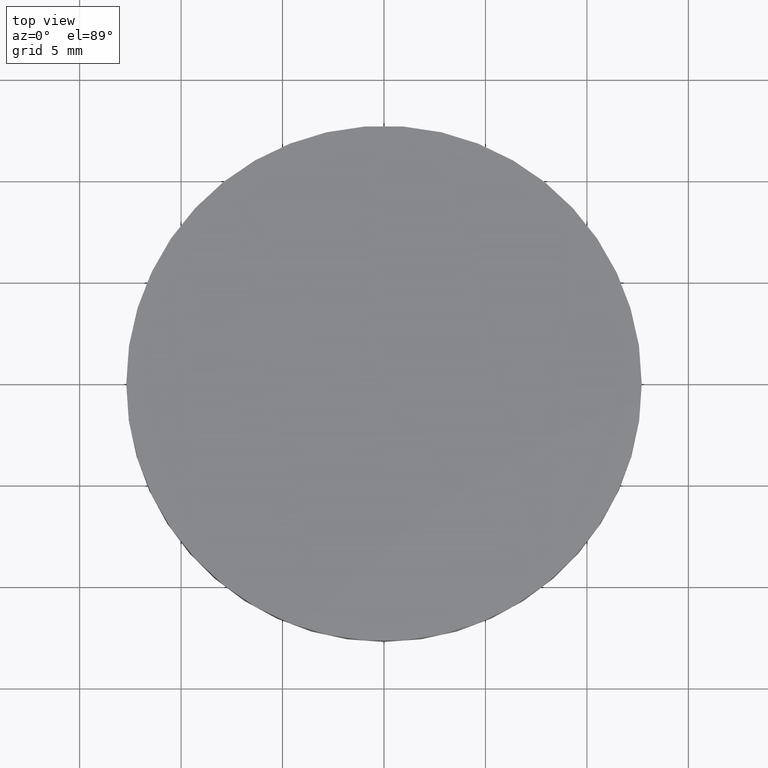
[diagram: clean part render]
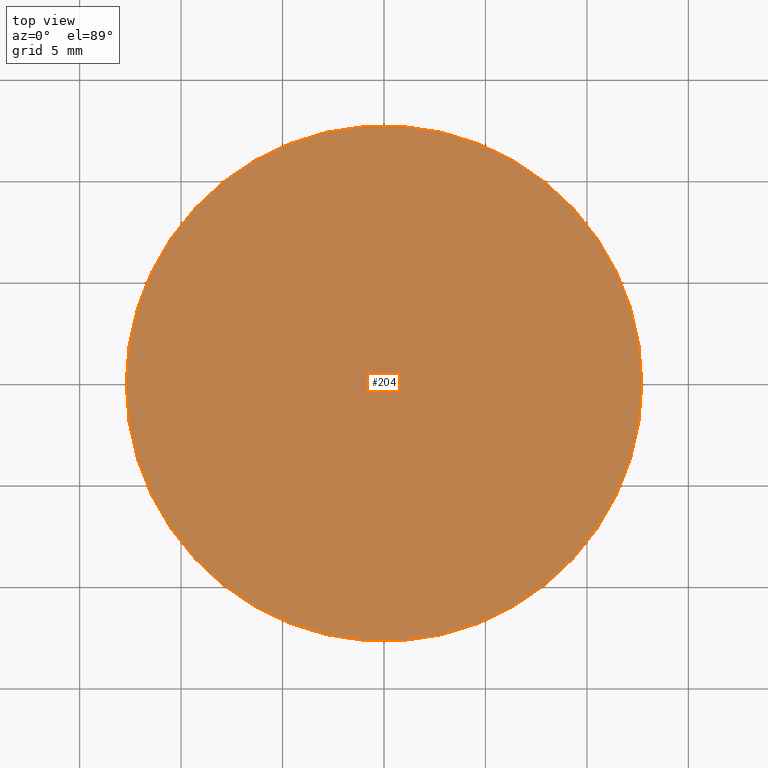
[diagram: same view with one face highlighted and labeled with its STEP entity id]
A machine part, top view. The second image highlights one B-rep face of the part: STEP entity #204.
In plain terms, the highlighted planar face has unit normal (0, 0, 1).
Its self-contained STEP definition (entity closure, byte-faithful):
#4 = DIRECTION ( 'NONE',  ( 1.000000000000000000, 0.0000000000000000000, 0.0000000000000000000 ) ) ;
#7 = FACE_OUTER_BOUND ( 'NONE', #196, .T. ) ;
#10 = AXIS2_PLACEMENT_3D ( 'NONE', #68, #56, #140 ) ;
#22 = PLANE ( 'NONE',  #132 ) ;
#41 = CARTESIAN_POINT ( 'NONE',  ( 4.996003610813200500E-016, 2.442490654175340100E-015, 3.000000000000000000 ) ) ;
#56 = DIRECTION ( 'NONE',  ( -0.0000000000000000000, -0.0000000000000000000, -1.000000000000000000 ) ) ;
#67 = EDGE_CURVE ( 'NONE', #189, #69, #111, .T. ) ;
#68 = CARTESIAN_POINT ( 'NONE',  ( 4.996003610813200500E-016, 2.442490654175340100E-015, 3.000000000000000000 ) ) ;
#69 = VERTEX_POINT ( 'NONE', #224 ) ;
#78 = DIRECTION ( 'NONE',  ( 0.0000000000000000000, 0.0000000000000000000, 1.000000000000000000 ) ) ;
#79 = DIRECTION ( 'NONE',  ( -0.0000000000000000000, -0.0000000000000000000, -1.000000000000000000 ) ) ;
#84 = AXIS2_PLACEMENT_3D ( 'NONE', #41, #79, #4 ) ;
#111 = CIRCLE ( 'NONE', #10, 12.69999999999999900 ) ;
#130 = CARTESIAN_POINT ( 'NONE',  ( 0.0000000000000000000, 26.11199999999999800, 3.000000000000000000 ) ) ;
#132 = AXIS2_PLACEMENT_3D ( 'NONE', #130, #78, #213 ) ;
#140 = DIRECTION ( 'NONE',  ( 1.000000000000000000, 0.0000000000000000000, 0.0000000000000000000 ) ) ;
#145 = ORIENTED_EDGE ( 'NONE', *, *, #67, .F. ) ;
#165 = ORIENTED_EDGE ( 'NONE', *, *, #205, .F. ) ;
#189 = VERTEX_POINT ( 'NONE', #217 ) ;
#196 = EDGE_LOOP ( 'NONE', ( #165, #145 ) ) ;
#204 = ADVANCED_FACE ( 'NONE', ( #7 ), #22, .T. ) ;
#205 = EDGE_CURVE ( 'NONE', #69, #189, #216, .T. ) ;
#213 = DIRECTION ( 'NONE',  ( 1.000000000000000000, 0.0000000000000000000, -0.0000000000000000000 ) ) ;
#216 = CIRCLE ( 'NONE', #84, 12.69999999999999900 ) ;
#217 = CARTESIAN_POINT ( 'NONE',  ( -12.69999999999999900, 3.997792089092478900E-015, 3.000000000000000000 ) ) ;
#224 = CARTESIAN_POINT ( 'NONE',  ( 12.69999999999999900, 2.442490654175340100E-015, 3.000000000000000000 ) ) ;